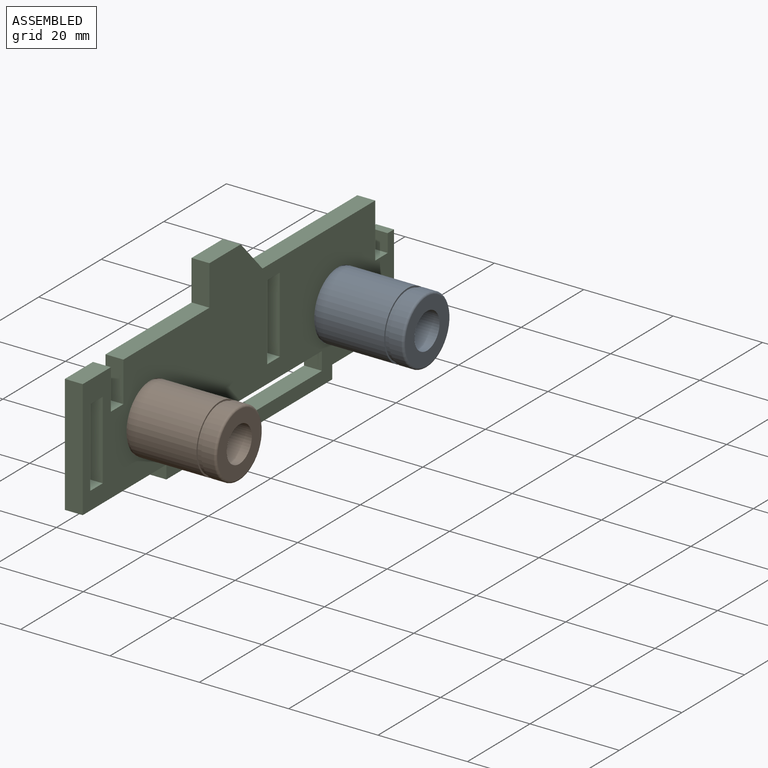
[diagram: assembled view]
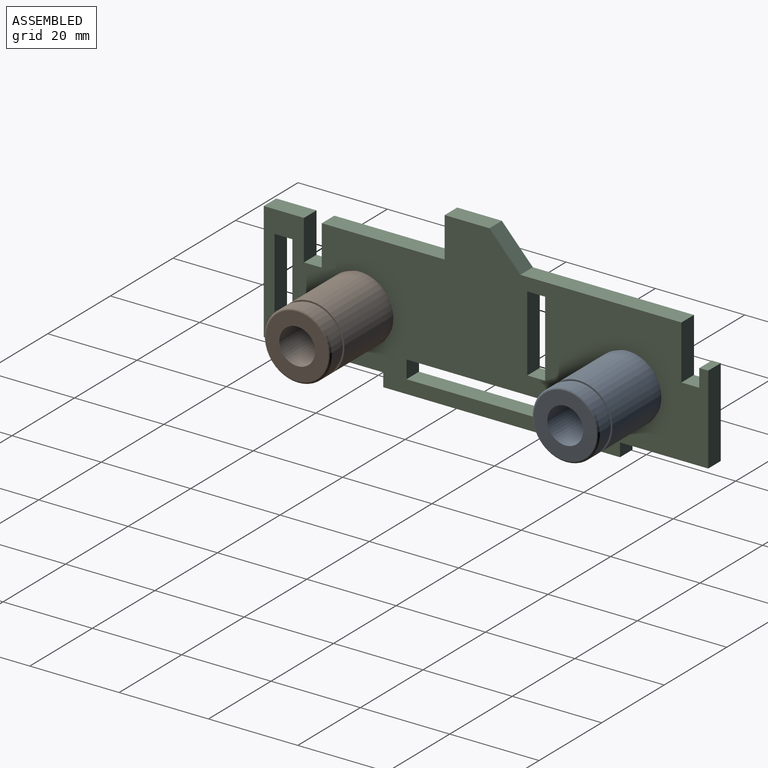
[diagram: assembled view, second angle]
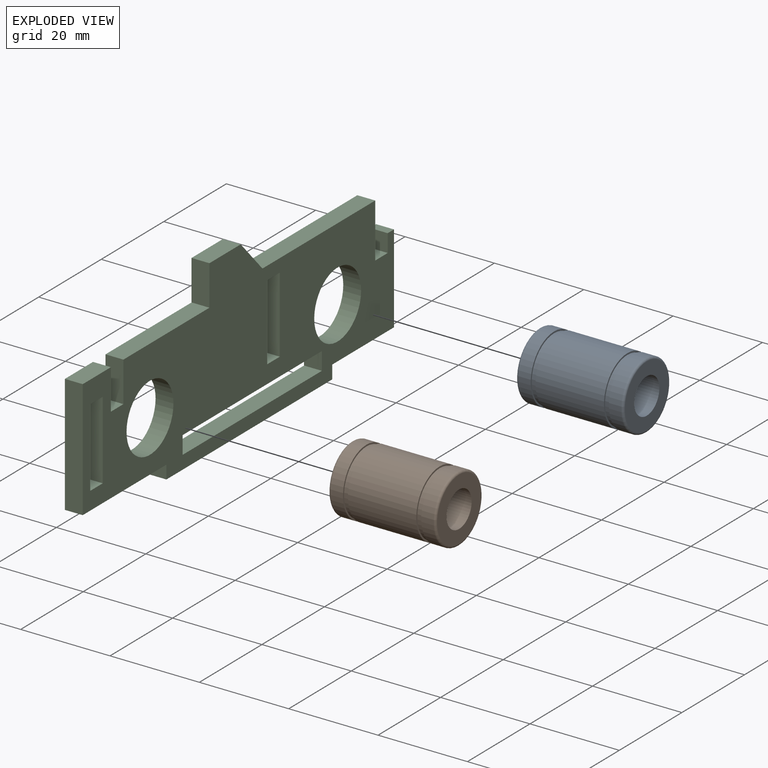
[diagram: exploded view]
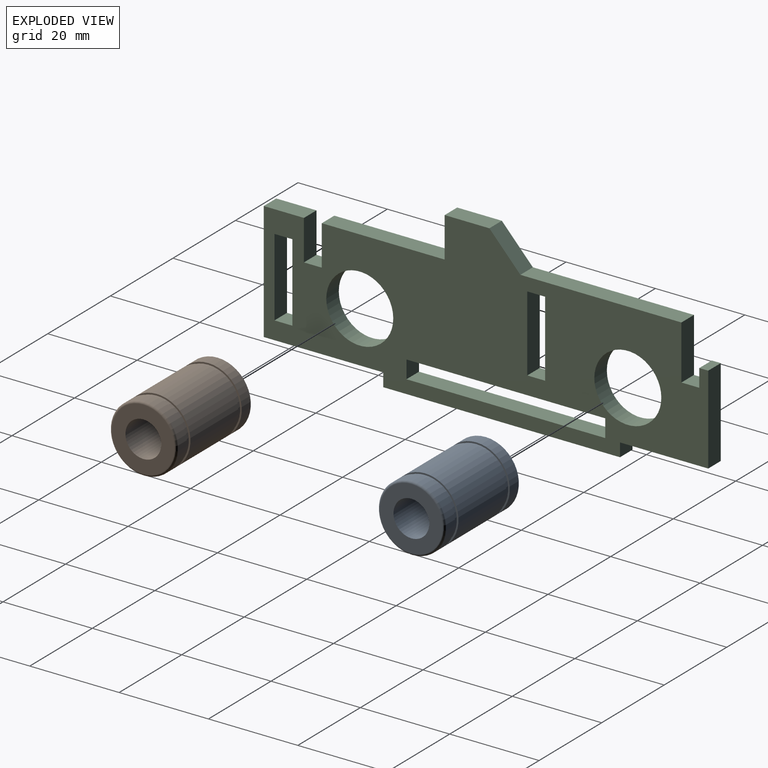
[diagram: exploded view, second angle]
ASSEMBLY  parts=3 mates=2
PART A: 14 faces, bbox 16.2x16.2x24 mm
  f0: plane 15x15mm, normal (0,0,-1), area 16.1mm2, adj f1,f10
  f1: cylinder r=7.15mm len=14.3mm, axis (0,0,-1), area 49.4mm2, adj f0,f2
  f2: plane 15x15mm, normal (0,0,1), area 16.1mm2, adj f1,f3
  f3: cylinder r=7.5mm len=15mm, axis (0,0,-1), area 129.6mm2, adj f2,f12
  f4: plane 14x14mm, normal (0,0,-1), area 103.7mm2, adj f11,f12
  f5: plane 14x14mm, normal (0,0,1), area 103.7mm2, adj f11,f13
  f6: cylinder r=7.5mm len=15mm, axis (0,0,-1), area 129.6mm2, adj f7,f13
  f7: plane 15x15mm, normal (0,0,-1), area 16.1mm2, adj f6,f8
  f8: cylinder r=7.15mm len=14.3mm, axis (0,0,-1), area 49.4mm2, adj f7,f9
  f9: plane 15x15mm, normal (0,0,1), area 16.1mm2, adj f8,f10
  f10: cylinder r=7.5mm len=15.3mm, axis (0,0,-1), area 721mm2, adj f0,f9
  f11: cylinder r=4mm len=24mm, axis (0,0,1), area 603.2mm2, adj f4,f5
  f12: torus R=7mm, axis (0,0,1), area 36.1mm2, adj f3,f4
  f13: torus R=7mm, axis (0,0,-1), area 36.1mm2, adj f5,f6
PART B: same geometry as A
PART C: 36 faces, bbox 99.5x38.5x4 mm
  f0: plane 17x4mm, normal (1,0,0), area 68mm2, adj f1,f29,f34,f35
  f1: plane 4x4mm, normal (0,-1,0), area 16mm2, adj f0,f2,f34,f35
  f2: plane 17x4mm, normal (-1,0,0), area 68mm2, adj f1,f29,f34,f35
  f3: plane 17.5x4mm, normal (-1,0,0), area 70mm2, adj f4,f30,f34,f35
  f4: plane 4x4mm, normal (0,1,0), area 16mm2, adj f3,f5,f34,f35
  f5: plane 17.5x4mm, normal (1,0,0), area 70mm2, adj f4,f30,f34,f35
  f6: plane 44.5x4mm, normal (0,1,0), area 178mm2, adj f7,f31,f34,f35
  f7: plane 4x4mm, normal (1,0,0), area 16mm2, adj f6,f8,f34,f35
  f8: plane 44.5x4mm, normal (0,-1,0), area 178mm2, adj f7,f31,f34,f35
  f9: plane 26.75x4mm, normal (0,-1,0), area 107mm2, adj f10,f32,f34,f35
  f10: plane 4x3mm, normal (-1,0,0), area 12mm2, adj f9,f11,f34,f35
  f11: plane 53x4mm, normal (0,-1,0), area 212mm2, adj f10,f12,f34,f35
  f12: plane 4x3mm, normal (1,0,0), area 12mm2, adj f11,f13,f34,f35
  f13: plane 19.75x4mm, normal (0,-1,0), area 79mm2, adj f12,f14,f34,f35
  f14: plane 19.8x4mm, normal (1,0,0), area 79.2mm2, adj f13,f15,f34,f35
  f15: plane 4x2mm, normal (0,1,0), area 8mm2, adj f14,f16,f34,f35
  f16: plane 4x4mm, normal (-1,0,0), area 16mm2, adj f15,f17,f34,f35
  f17: plane 4x4mm, normal (0,1,0), area 16mm2, adj f16,f18,f34,f35
  f18: plane 12.14x4mm, normal (1,0,0), area 48.6mm2, adj f17,f19,f34,f35
  f19: plane 36.05x4mm, normal (0,1,0), area 144.2mm2, adj f18,f20,f34,f35
  f20: plane 7.56x6.95mm, normal (0.74,0.68,0), area 41.1mm2, adj f19,f21,f34,f35
  f21: plane 10x4mm, normal (0,1,0), area 40mm2, adj f20,f22,f34,f35
  f22: plane 9x4mm, normal (-1,0,0), area 36mm2, adj f21,f23,f34,f35
  f23: plane 27.5x4mm, normal (0,1,0), area 110mm2, adj f22,f24,f34,f35
  f24: plane 9x4mm, normal (-1,0,0), area 36mm2, adj f23,f25,f34,f35
  f25: plane 4x4mm, normal (0,1,0), area 16mm2, adj f24,f26,f34,f35
  f26: plane 9x4mm, normal (1,0,0), area 36mm2, adj f25,f27,f34,f35
  f27: plane 9x4mm, normal (0,1,0), area 36mm2, adj f26,f32,f34,f35
  f28: cylinder r=7.5mm len=15mm, axis (0,0,-1), area 188.5mm2, adj f34,f35
  f29: plane 4x4mm, normal (0,1,0), area 16mm2, adj f0,f2,f34,f35
  f30: plane 4x4mm, normal (0,-1,0), area 16mm2, adj f3,f5,f34,f35
  f31: plane 4x4mm, normal (-1,0,0), area 16mm2, adj f6,f8,f34,f35
  f32: plane 26.5x4mm, normal (-1,0,0), area 106mm2, adj f9,f27,f34,f35
  f33: cylinder r=7.5mm len=15mm, axis (0,0,-1), area 188.5mm2, adj f34,f35
  f34: plane 99.5x38.5mm, normal (0,0,1), area 2212.5mm2, adj f0,f1,f2,f3,f4,f5,f6,f7
  f35: plane 99.5x38.5mm, normal (0,0,-1), area 2212.5mm2, adj f0,f1,f2,f3,f4,f5,f6,f7
PLACE A rot(axis=(0,1,0),90deg) t=(22.61,40.47,-23.43)mm
PLACE B rot(axis=(0,1,0),90deg) t=(22.61,-19.53,-23.43)mm
PLACE C rot(axis=(0.58,0.58,0.58),120deg) t=(22.61,-41.03,-8.43)mm
MATE fastened C.f33 <-> B.f1  axis (-1,0,0) through (22.61,-19.53,-23.43)mm
MATE fastened C.f28 <-> A.f1  axis (-1,0,0) through (22.61,40.47,-23.43)mm
